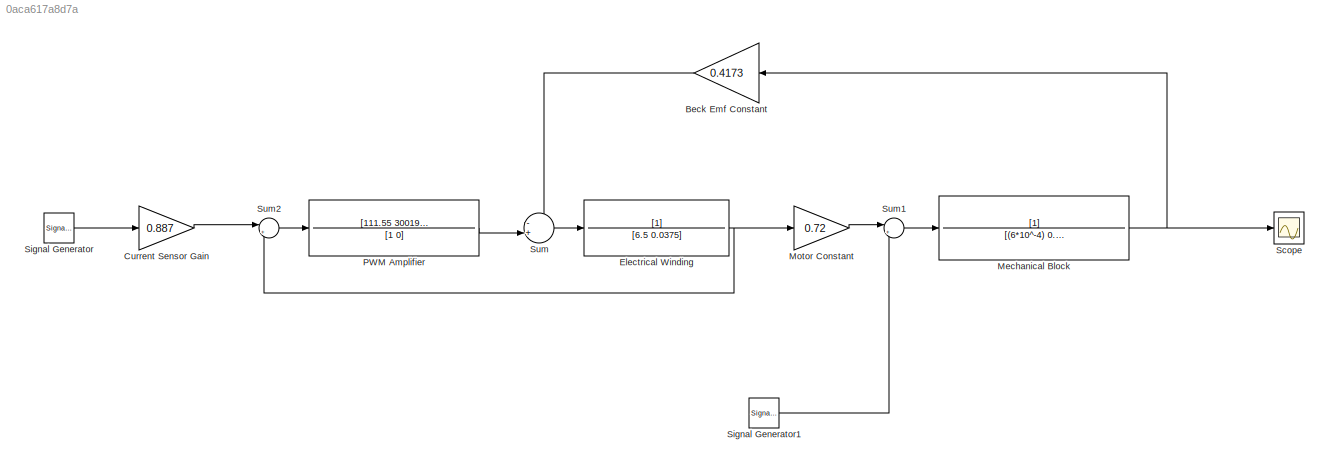
MODEL slx_0aca617a8d7a
KIND model
CONFIG AbsTol = auto
CONFIG EnableMultiTasking = off
CONFIG FixedStep = auto
CONFIG MaxStep = auto
CONFIG MinStep = auto
CONFIG RelTol = 1e-3
CONFIG SampleTimeConstraint = Unconstrained
CONFIG SolverName = VariableStepAuto
CONFIG StartTime = 0.0
CONFIG StopTime = 10.0
BLOCK [Gain] Beck Emf Constant
  Gain = 0.4173
BLOCK [Gain] Current Sensor Gain
  Gain = 0.887
BLOCK [TransferFcn] Electrical Winding
  Denominator = [6.5 0.0375]
BLOCK [TransferFcn] Mechanical Block
  Denominator = [(6*10^-4) 0.0104]
BLOCK [Gain] Motor Constant
  Gain = 0.72
BLOCK [TransferFcn] PWM Amplifier
  Denominator = [1 0]
  Numerator = [111.55 300190]
BLOCK [Scope] Scope
  ActiveDisplayYMaximum = 196.63420091342388
  ActiveDisplayYMinimum = -196.63438781612084
  Floating = off
  GraphicalSettings = {"Style":{"BackgroundColor":[0.12941176470588237,0.12941176470588237,0.12941176470588237],"AxesColor":[0.07058823529411765,0.07058823529411765,0.07058823529411765],"LabelsColor":[0.8509803921568627,0.8509803921568627,0.8509803921568627],"PreserveColors":false,"Visible":[true],"LineStyle":["-"],"LineWidth":[1.5],"BarWidth":[0.9],"LineColor":["auto"],"LineFaceAlpha":[1],"LineEdgeAlpha":[1],"Marker":...<+1895ch>
  MultipleDisplayCache = [{"MaxYLimMag":196.63438781612084,"MaxYLimReal":196.63420091342388,"MinYLimMag":0,"MinYLimReal":-196.63438781612084,"PlotAsMagnitudePhase":false,"ShowGrid":true,"ShowLegend":false,"Title":"%<SignalLabel>","YLabel":""}]
  NumInputPorts = 1
  ScopeFrameLocation = window
  WasSavedAsWebScope = on
  WindowPosition = [391.000000,362.000000,560.000000,420.000000,]
BLOCK [SignalGenerator] Signal Generator
  Units = rad/sec
BLOCK [SignalGenerator] Signal Generator1
  Units = rad/sec
BLOCK [Sum] Sum
  Inputs = -+|
BLOCK [Sum] Sum1
  Inputs = |++
BLOCK [Sum] Sum2
  Inputs = |+-
LINE Beck Emf Constant:1 -> Sum:1
LINE Current Sensor Gain:1 -> Sum2:1
NET Electrical Winding:1 -> Motor Constant:1, Sum2:2
NET Mechanical Block:1 -> Beck Emf Constant:1, Scope:1
LINE Motor Constant:1 -> Sum1:1
LINE PWM Amplifier:1 -> Sum:2
LINE Signal Generator1:1 -> Sum1:2
LINE Signal Generator:1 -> Current Sensor Gain:1
LINE Sum1:1 -> Mechanical Block:1
LINE Sum2:1 -> PWM Amplifier:1
LINE Sum:1 -> Electrical Winding:1
note: NET lines group one-source signal fan-out (src -> all destinations, sorted); 1:1 wires keep LINE
